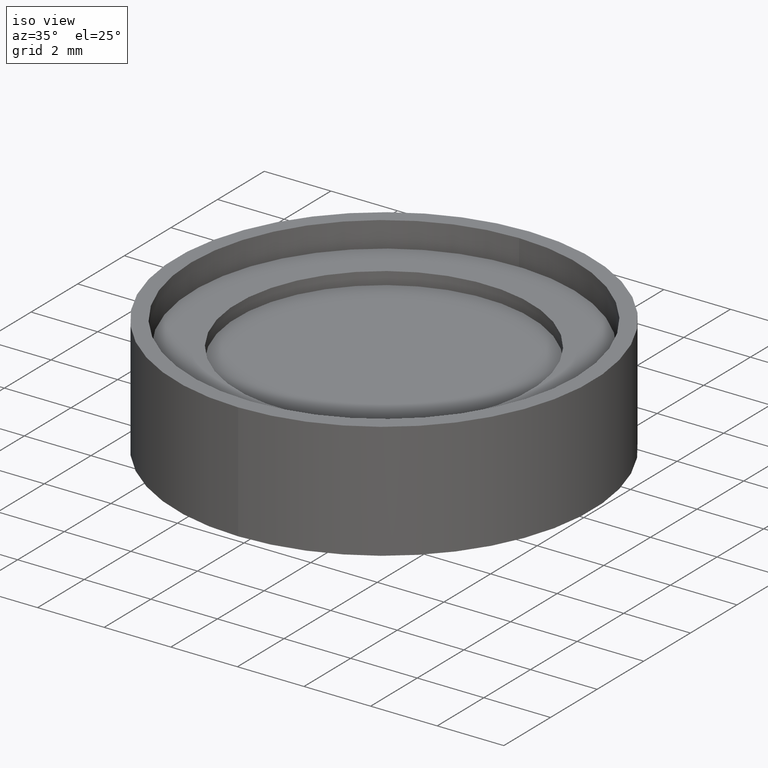
[diagram: clean part render]
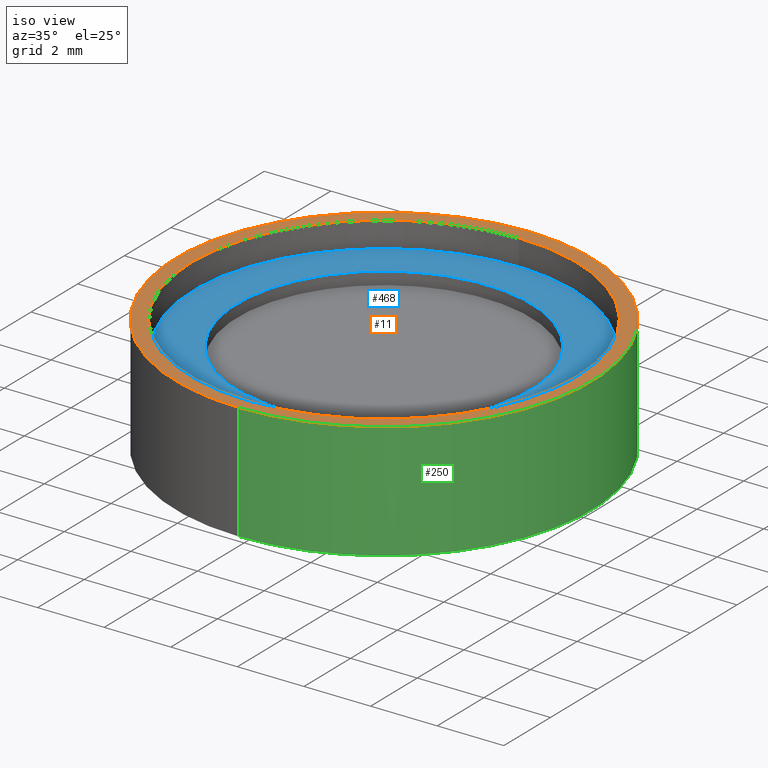
[diagram: same view with three faces highlighted in distinct colors, each labeled with its STEP entity id]
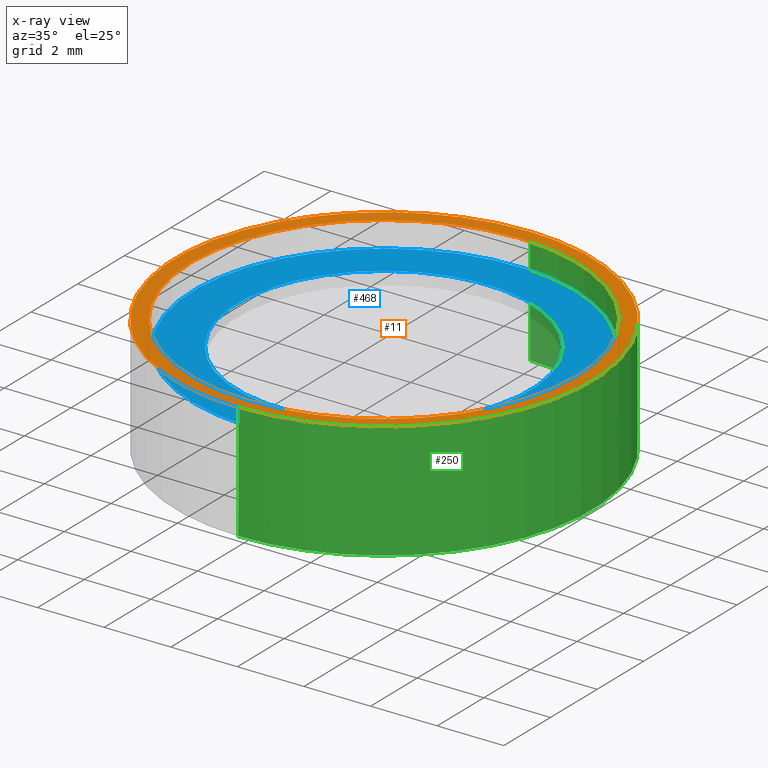
[diagram: x-ray of the same camera — body ghosted, the three highlighted faces saturated]
A machine part, iso view with three faces highlighted in distinct colors.
The next image is the same camera in x-ray (body ghosted, the three faces saturated) — at least one of them is partly hidden behind the body in this view.
Their STEP definitions:

[orange] entity #11 — the highlighted planar face has unit normal (0, -0, 1).
#10 = EDGE_LOOP ( 'NONE', ( #214, #481 ) ) ;
#11 = ADVANCED_FACE ( 'NONE', ( #392, #138 ), #654, .T. ) ;
#26 = CARTESIAN_POINT ( 'NONE',  ( 7.652083059792319479E-16, -6.248400000000000176, 3.500000000000000000 ) ) ;
#40 = CARTESIAN_POINT ( 'NONE',  ( 0.0000000000000000000, 5.791199999999999903, 3.500000000000000000 ) ) ;
#78 = AXIS2_PLACEMENT_3D ( 'NONE', #603, #240, #651 ) ;
#79 = ORIENTED_EDGE ( 'NONE', *, *, #472, .F. ) ;
#106 = CARTESIAN_POINT ( 'NONE',  ( 7.092174543222150290E-16, -5.791199999999999903, 3.500000000000000000 ) ) ;
#120 = AXIS2_PLACEMENT_3D ( 'NONE', #458, #329, #285 ) ;
#127 = EDGE_CURVE ( 'NONE', #557, #535, #389, .T. ) ;
#129 = EDGE_CURVE ( 'NONE', #486, #262, #501, .T. ) ;
#136 = DIRECTION ( 'NONE',  ( 1.000000000000000000, 0.0000000000000000000, 0.0000000000000000000 ) ) ;
#138 = FACE_BOUND ( 'NONE', #10, .T. ) ;
#144 = EDGE_CURVE ( 'NONE', #262, #486, #425, .T. ) ;
#151 = DIRECTION ( 'NONE',  ( 0.0000000000000000000, 1.000000000000000000, 1.497723680736986336E-16 ) ) ;
#214 = ORIENTED_EDGE ( 'NONE', *, *, #129, .T. ) ;
#240 = DIRECTION ( 'NONE',  ( 0.0000000000000000000, 1.388134143122084055E-16, -1.000000000000000000 ) ) ;
#262 = VERTEX_POINT ( 'NONE', #106 ) ;
#285 = DIRECTION ( 'NONE',  ( 0.0000000000000000000, 1.000000000000000000, 1.388134143122084794E-16 ) ) ;
#286 = AXIS2_PLACEMENT_3D ( 'NONE', #507, #470, #297 ) ;
#293 = CARTESIAN_POINT ( 'NONE',  ( 0.0000000000000000000, 6.248400000000000176, 3.500000000000000000 ) ) ;
#297 = DIRECTION ( 'NONE',  ( 0.0000000000000000000, 1.000000000000000000, 1.497723680736986336E-16 ) ) ;
#326 = ORIENTED_EDGE ( 'NONE', *, *, #127, .F. ) ;
#329 = DIRECTION ( 'NONE',  ( 0.0000000000000000000, 1.388134143122084055E-16, -1.000000000000000000 ) ) ;
#336 = CARTESIAN_POINT ( 'NONE',  ( 0.0000000000000000000, 5.791199999999999903, 3.500000000000000000 ) ) ;
#349 = AXIS2_PLACEMENT_3D ( 'NONE', #40, #447, #136 ) ;
#362 = AXIS2_PLACEMENT_3D ( 'NONE', #456, #396, #151 ) ;
#389 = CIRCLE ( 'NONE', #78, 6.248400000000000176 ) ;
#392 = FACE_OUTER_BOUND ( 'NONE', #483, .T. ) ;
#396 = DIRECTION ( 'NONE',  ( 0.0000000000000000000, 1.497723680736985843E-16, -1.000000000000000000 ) ) ;
#411 = CIRCLE ( 'NONE', #120, 6.248400000000000176 ) ;
#425 = CIRCLE ( 'NONE', #286, 5.791199999999999903 ) ;
#447 = DIRECTION ( 'NONE',  ( 0.0000000000000000000, -1.224606353822375779E-16, 1.000000000000000000 ) ) ;
#456 = CARTESIAN_POINT ( 'NONE',  ( 0.0000000000000000000, -4.286122238378319911E-16, 3.500000000000000000 ) ) ;
#458 = CARTESIAN_POINT ( 'NONE',  ( 0.0000000000000000000, -4.286122238378319911E-16, 3.500000000000000000 ) ) ;
#470 = DIRECTION ( 'NONE',  ( 0.0000000000000000000, 1.497723680736985843E-16, -1.000000000000000000 ) ) ;
#472 = EDGE_CURVE ( 'NONE', #535, #557, #411, .T. ) ;
#481 = ORIENTED_EDGE ( 'NONE', *, *, #144, .T. ) ;
#483 = EDGE_LOOP ( 'NONE', ( #326, #79 ) ) ;
#486 = VERTEX_POINT ( 'NONE', #336 ) ;
#501 = CIRCLE ( 'NONE', #362, 5.791199999999999903 ) ;
#507 = CARTESIAN_POINT ( 'NONE',  ( 0.0000000000000000000, -4.286122238378319911E-16, 3.500000000000000000 ) ) ;
#535 = VERTEX_POINT ( 'NONE', #26 ) ;
#557 = VERTEX_POINT ( 'NONE', #293 ) ;
#603 = CARTESIAN_POINT ( 'NONE',  ( 0.0000000000000000000, -4.286122238378319911E-16, 3.500000000000000000 ) ) ;
#651 = DIRECTION ( 'NONE',  ( 0.0000000000000000000, 1.000000000000000000, 1.388134143122084794E-16 ) ) ;
#654 = PLANE ( 'NONE',  #349 ) ;

[blue] entity #468 — the highlighted planar face has unit normal (0, -0, 1).
#49 = ORIENTED_EDGE ( 'NONE', *, *, #635, .F. ) ;
#63 = AXIS2_PLACEMENT_3D ( 'NONE', #437, #323, #530 ) ;
#70 = DIRECTION ( 'NONE',  ( 0.8284142084669521289, 0.5601159694296110603, 0.0000000000000000000 ) ) ;
#85 = ORIENTED_EDGE ( 'NONE', *, *, #397, .T. ) ;
#90 = AXIS2_PLACEMENT_3D ( 'NONE', #547, #545, #454 ) ;
#92 = ORIENTED_EDGE ( 'NONE', *, *, #416, .T. ) ;
#109 = CIRCLE ( 'NONE', #193, 4.406899999999999373 ) ;
#111 = DIRECTION ( 'NONE',  ( 0.0000000000000000000, 0.0000000000000000000, 1.000000000000000000 ) ) ;
#121 = DIRECTION ( 'NONE',  ( 0.0000000000000000000, 0.0000000000000000000, 1.000000000000000000 ) ) ;
#124 = EDGE_LOOP ( 'NONE', ( #92, #85 ) ) ;
#128 = PLANE ( 'NONE',  #90 ) ;
#135 = FACE_OUTER_BOUND ( 'NONE', #124, .T. ) ;
#146 = CARTESIAN_POINT ( 'NONE',  ( 3.650738575293011046, 2.468375065679352609, 2.762000000000000011 ) ) ;
#167 = ORIENTED_EDGE ( 'NONE', *, *, #335, .F. ) ;
#182 = AXIS2_PLACEMENT_3D ( 'NONE', #259, #121, #70 ) ;
#193 = AXIS2_PLACEMENT_3D ( 'NONE', #248, #467, #195 ) ;
#195 = DIRECTION ( 'NONE',  ( 0.8284142084669521289, 0.5601159694296110603, 0.0000000000000000000 ) ) ;
#212 = AXIS2_PLACEMENT_3D ( 'NONE', #371, #111, #629 ) ;
#217 = VERTEX_POINT ( 'NONE', #407 ) ;
#238 = VERTEX_POINT ( 'NONE', #146 ) ;
#248 = CARTESIAN_POINT ( 'NONE',  ( 0.0000000000000000000, 0.0000000000000000000, 2.762000000000000011 ) ) ;
#259 = CARTESIAN_POINT ( 'NONE',  ( 0.0000000000000000000, 0.0000000000000000000, 2.762000000000000011 ) ) ;
#273 = VERTEX_POINT ( 'NONE', #348 ) ;
#279 = FACE_BOUND ( 'NONE', #372, .T. ) ;
#300 = CARTESIAN_POINT ( 'NONE',  ( -4.734387201388630118, -3.201062765290225709, 2.762000000000000011 ) ) ;
#318 = CIRCLE ( 'NONE', #182, 5.714999999999998082 ) ;
#323 = DIRECTION ( 'NONE',  ( 0.0000000000000000000, 0.0000000000000000000, 1.000000000000000000 ) ) ;
#335 = EDGE_CURVE ( 'NONE', #238, #217, #342, .T. ) ;
#342 = CIRCLE ( 'NONE', #63, 4.406899999999999373 ) ;
#348 = CARTESIAN_POINT ( 'NONE',  ( 4.734387201388630118, 3.201062765290226153, 2.762000000000000011 ) ) ;
#371 = CARTESIAN_POINT ( 'NONE',  ( 0.0000000000000000000, 0.0000000000000000000, 2.762000000000000011 ) ) ;
#372 = EDGE_LOOP ( 'NONE', ( #167, #49 ) ) ;
#397 = EDGE_CURVE ( 'NONE', #619, #273, #510, .T. ) ;
#407 = CARTESIAN_POINT ( 'NONE',  ( -3.650738575293011490, -2.468375065679352165, 2.762000000000000011 ) ) ;
#416 = EDGE_CURVE ( 'NONE', #273, #619, #318, .T. ) ;
#437 = CARTESIAN_POINT ( 'NONE',  ( 0.0000000000000000000, 0.0000000000000000000, 2.762000000000000011 ) ) ;
#454 = DIRECTION ( 'NONE',  ( 0.8284142084669522399, 0.5601159694296110603, 0.0000000000000000000 ) ) ;
#467 = DIRECTION ( 'NONE',  ( 0.0000000000000000000, 0.0000000000000000000, 1.000000000000000000 ) ) ;
#468 = ADVANCED_FACE ( 'NONE', ( #135, #279 ), #128, .T. ) ;
#510 = CIRCLE ( 'NONE', #212, 5.714999999999998082 ) ;
#530 = DIRECTION ( 'NONE',  ( 0.8284142084669521289, 0.5601159694296110603, 0.0000000000000000000 ) ) ;
#545 = DIRECTION ( 'NONE',  ( 0.0000000000000000000, -0.0000000000000000000, 1.000000000000000000 ) ) ;
#547 = CARTESIAN_POINT ( 'NONE',  ( 0.0000000000000000000, 0.0000000000000000000, 2.762000000000000011 ) ) ;
#619 = VERTEX_POINT ( 'NONE', #300 ) ;
#629 = DIRECTION ( 'NONE',  ( 0.8284142084669521289, 0.5601159694296110603, 0.0000000000000000000 ) ) ;
#635 = EDGE_CURVE ( 'NONE', #217, #238, #109, .T. ) ;

[green] entity #250 — the highlighted cylindrical surface (partial cylindrical patch) has radius 6.2484 mm, axis along (0, 0, -1).
#26 = CARTESIAN_POINT ( 'NONE',  ( 7.652083059792319479E-16, -6.248400000000000176, 3.500000000000000000 ) ) ;
#27 = ORIENTED_EDGE ( 'NONE', *, *, #491, .F. ) ;
#29 = DIRECTION ( 'NONE',  ( 0.0000000000000000000, 1.224606353822375779E-16, -1.000000000000000000 ) ) ;
#42 = DIRECTION ( 'NONE',  ( 0.0000000000000000000, 1.224606353822375779E-16, -1.000000000000000000 ) ) ;
#78 = AXIS2_PLACEMENT_3D ( 'NONE', #603, #240, #651 ) ;
#98 = EDGE_CURVE ( 'NONE', #557, #478, #132, .T. ) ;
#125 = DIRECTION ( 'NONE',  ( 0.0000000000000000000, 1.224606353822375779E-16, -1.000000000000000000 ) ) ;
#127 = EDGE_CURVE ( 'NONE', #557, #535, #389, .T. ) ;
#132 = LINE ( 'NONE', #334, #245 ) ;
#155 = VERTEX_POINT ( 'NONE', #617 ) ;
#204 = CARTESIAN_POINT ( 'NONE',  ( 0.0000000000000000000, 0.0000000000000000000, 0.0000000000000000000 ) ) ;
#239 = DIRECTION ( 'NONE',  ( 0.0000000000000000000, 1.000000000000000000, 1.224606353822376026E-16 ) ) ;
#240 = DIRECTION ( 'NONE',  ( 0.0000000000000000000, 1.388134143122084055E-16, -1.000000000000000000 ) ) ;
#245 = VECTOR ( 'NONE', #282, 1000.000000000000000 ) ;
#250 = ADVANCED_FACE ( 'NONE', ( #512 ), #360, .T. ) ;
#282 = DIRECTION ( 'NONE',  ( 0.0000000000000000000, 1.224606353822375779E-16, -1.000000000000000000 ) ) ;
#293 = CARTESIAN_POINT ( 'NONE',  ( 0.0000000000000000000, 6.248400000000000176, 3.500000000000000000 ) ) ;
#331 = VECTOR ( 'NONE', #125, 1000.000000000000000 ) ;
#334 = CARTESIAN_POINT ( 'NONE',  ( 0.0000000000000000000, 6.248400000000000176, 7.651830341223738892E-16 ) ) ;
#338 = CARTESIAN_POINT ( 'NONE',  ( 0.0000000000000000000, 9.370480054233440181E-32, -7.651830341223738892E-16 ) ) ;
#359 = EDGE_CURVE ( 'NONE', #535, #155, #433, .T. ) ;
#360 = CYLINDRICAL_SURFACE ( 'NONE', #560, 6.248400000000000176 ) ;
#382 = ORIENTED_EDGE ( 'NONE', *, *, #127, .T. ) ;
#389 = CIRCLE ( 'NONE', #78, 6.248400000000000176 ) ;
#415 = DIRECTION ( 'NONE',  ( 0.0000000000000000000, 1.000000000000000000, 1.224606353822376026E-16 ) ) ;
#419 = ORIENTED_EDGE ( 'NONE', *, *, #359, .T. ) ;
#433 = LINE ( 'NONE', #637, #331 ) ;
#471 = CIRCLE ( 'NONE', #647, 6.248400000000000176 ) ;
#478 = VERTEX_POINT ( 'NONE', #504 ) ;
#491 = EDGE_CURVE ( 'NONE', #478, #155, #471, .T. ) ;
#504 = CARTESIAN_POINT ( 'NONE',  ( 0.0000000000000000000, 6.248400000000000176, 0.0000000000000000000 ) ) ;
#512 = FACE_OUTER_BOUND ( 'NONE', #523, .T. ) ;
#523 = EDGE_LOOP ( 'NONE', ( #382, #419, #27, #582 ) ) ;
#535 = VERTEX_POINT ( 'NONE', #26 ) ;
#557 = VERTEX_POINT ( 'NONE', #293 ) ;
#560 = AXIS2_PLACEMENT_3D ( 'NONE', #204, #42, #415 ) ;
#582 = ORIENTED_EDGE ( 'NONE', *, *, #98, .F. ) ;
#603 = CARTESIAN_POINT ( 'NONE',  ( 0.0000000000000000000, -4.286122238378319911E-16, 3.500000000000000000 ) ) ;
#617 = CARTESIAN_POINT ( 'NONE',  ( 7.652083059792319479E-16, -6.248400000000000176, -1.530366068244749948E-15 ) ) ;
#637 = CARTESIAN_POINT ( 'NONE',  ( 7.652083059792319479E-16, -6.248400000000000176, -7.651830341223738892E-16 ) ) ;
#647 = AXIS2_PLACEMENT_3D ( 'NONE', #338, #29, #239 ) ;
#651 = DIRECTION ( 'NONE',  ( 0.0000000000000000000, 1.000000000000000000, 1.388134143122084794E-16 ) ) ;